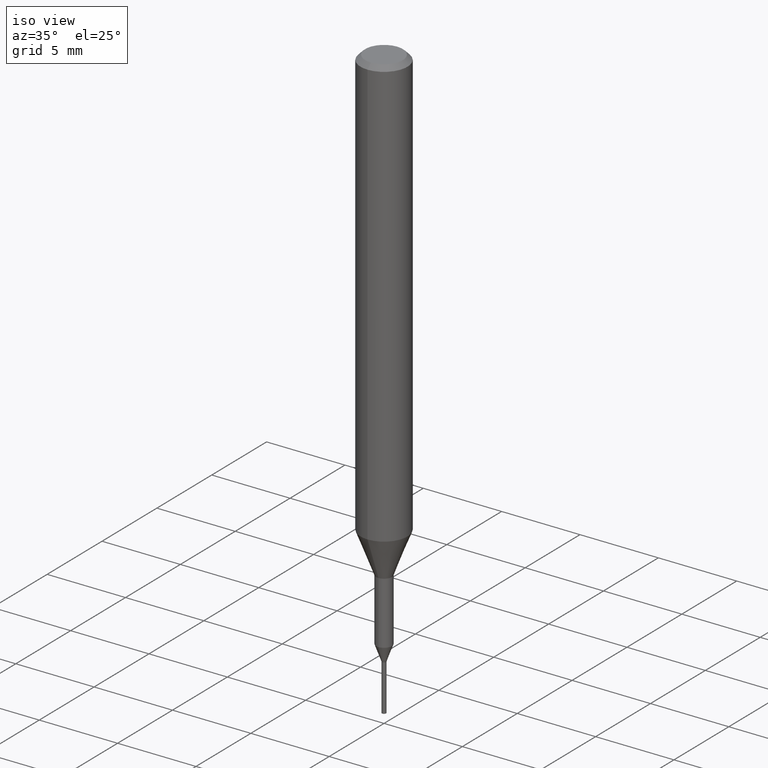
[diagram: clean part render]
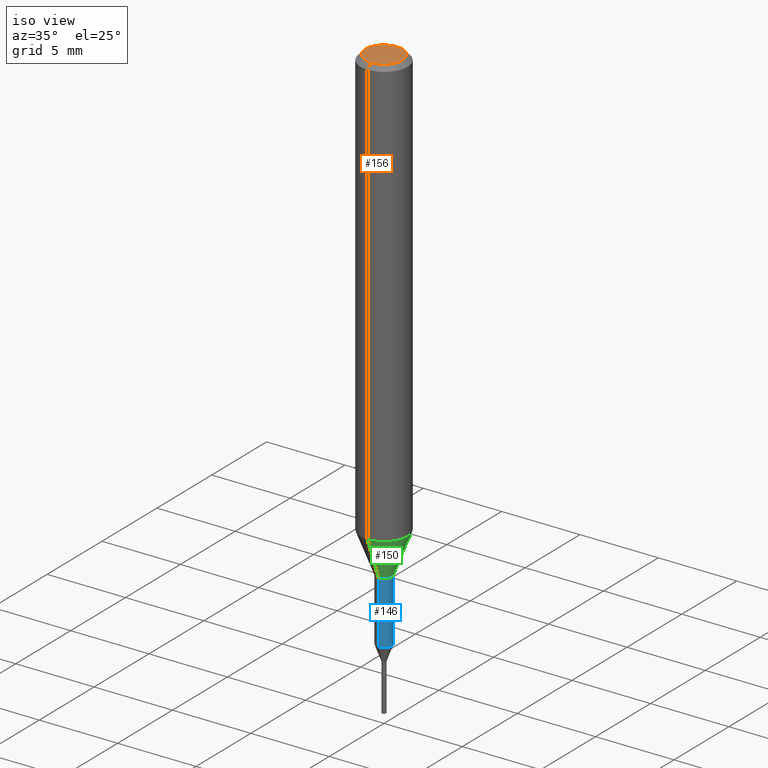
[diagram: same view with three faces highlighted in distinct colors, each labeled with its STEP entity id]
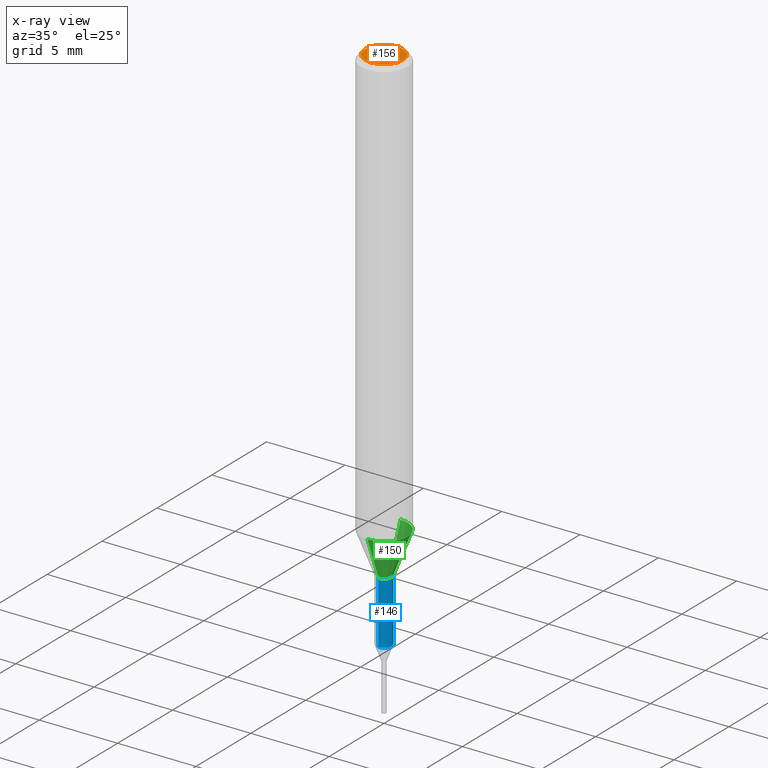
[diagram: x-ray of the same camera — body ghosted, the three highlighted faces saturated]
A machine part, iso view with three faces highlighted in distinct colors.
The next image is the same camera in x-ray (body ghosted, the three faces saturated) — at least one of them is partly hidden behind the body in this view.
Their STEP definitions:

[orange] entity #156 — the highlighted planar face has unit normal (-0, 0, 1).
#156=ADVANCED_FACE('',(#339),#340,.T.);
#174=VERTEX_POINT('',#360);
#192=EDGE_CURVE('',#262,#174,#382,.T.);
#208=EDGE_CURVE('',#174,#262,#398,.T.);
#262=VERTEX_POINT('',#460);
#339=FACE_OUTER_BOUND('',#539,.T.);
#340=PLANE('',#540);
#360=CARTESIAN_POINT('',(0.0,1.2,0.0));
#382=CIRCLE('',#595,1.2);
#398=CIRCLE('',#622,1.2);
#460=CARTESIAN_POINT('',(1.46952762458685E-016,-1.2,0.0));
#539=EDGE_LOOP('',(#774,#775));
#540=AXIS2_PLACEMENT_3D('',#776,#777,#778);
#595=AXIS2_PLACEMENT_3D('',#832,#833,#834);
#622=AXIS2_PLACEMENT_3D('',#850,#851,#852);
#774=ORIENTED_EDGE('',*,*,#208,.F.);
#775=ORIENTED_EDGE('',*,*,#192,.F.);
#776=CARTESIAN_POINT('',(0.0,0.6,0.0));
#777=DIRECTION('',(-0.0,0.0,1.0));
#778=DIRECTION('',(0.0,-1.0,0.0));
#832=CARTESIAN_POINT('',(0.0,0.0,0.0));
#833=DIRECTION('',(0.0,0.0,-1.0));
#834=DIRECTION('',(0.0,1.0,0.0));
#850=CARTESIAN_POINT('',(0.0,0.0,0.0));
#851=DIRECTION('',(0.0,0.0,-1.0));
#852=DIRECTION('',(0.0,1.0,0.0));

[blue] entity #146 — the highlighted cylindrical surface (edge-blend (fillet) strip) has radius 0.5 mm, axis along (-0, -0, 1).
#116=VERTEX_POINT('',#293);
#124=EDGE_CURVE('',#244,#116,#302,.T.);
#126=EDGE_CURVE('',#228,#116,#304,.T.);
#146=ADVANCED_FACE('',(#326),#327,.T.);
#184=VERTEX_POINT('',#373);
#194=EDGE_CURVE('',#244,#184,#384,.T.);
#204=EDGE_CURVE('',#184,#228,#394,.T.);
#228=VERTEX_POINT('',#421);
#244=VERTEX_POINT('',#440);
#293=CARTESIAN_POINT('',(6.12241946593498E-017,-0.49995,-30.0));
#302=CIRCLE('',#494,0.49995);
#304=LINE('',#497,#498);
#326=FACE_OUTER_BOUND('',#526,.T.);
#327=CYLINDRICAL_SURFACE('',#527,0.49995);
#373=CARTESIAN_POINT('',(0.0,0.49995,-33.983));
#384=LINE('',#598,#599);
#394=CIRCLE('',#616,0.49995);
#421=CARTESIAN_POINT('',(6.12241946593497E-017,-0.49995,-33.983));
#440=CARTESIAN_POINT('',(0.0,0.49995,-30.0));
#494=AXIS2_PLACEMENT_3D('',#718,#719,#720);
#497=CARTESIAN_POINT('',(6.12241946593497E-017,-0.49995,-31.9915));
#498=VECTOR('',#721,1.0);
#526=EDGE_LOOP('',(#752,#753,#754,#755));
#527=AXIS2_PLACEMENT_3D('',#756,#757,#758);
#598=CARTESIAN_POINT('',(-6.12241946593497E-017,0.49995,-31.9915));
#599=VECTOR('',#835,1.0);
#616=AXIS2_PLACEMENT_3D('',#844,#845,#846);
#718=CARTESIAN_POINT('',(0.0,0.0,-30.0));
#719=DIRECTION('',(0.0,0.0,-1.0));
#720=DIRECTION('',(0.0,1.0,0.0));
#721=DIRECTION('',(-0.0,-0.0,1.0));
#752=ORIENTED_EDGE('',*,*,#194,.F.);
#753=ORIENTED_EDGE('',*,*,#124,.T.);
#754=ORIENTED_EDGE('',*,*,#126,.F.);
#755=ORIENTED_EDGE('',*,*,#204,.F.);
#756=CARTESIAN_POINT('',(0.0,0.0,-31.9915));
#757=DIRECTION('',(-0.0,-0.0,1.0));
#758=DIRECTION('',(0.0,1.0,0.0));
#835=DIRECTION('',(0.0,0.0,-1.0));
#844=CARTESIAN_POINT('',(0.0,0.0,-33.983));
#845=DIRECTION('',(0.0,0.0,-1.0));
#846=DIRECTION('',(0.0,1.0,0.0));

[green] entity #150 — the highlighted conical surface has half-angle 21.001 deg.
#128=VERTEX_POINT('',#306);
#142=EDGE_CURVE('',#154,#128,#321,.T.);
#150=ADVANCED_FACE('',(#331),#332,.T.);
#154=VERTEX_POINT('',#337);
#158=VERTEX_POINT('',#342);
#182=EDGE_CURVE('',#154,#238,#371,.T.);
#196=EDGE_CURVE('',#158,#128,#386,.T.);
#198=EDGE_CURVE('',#238,#158,#388,.T.);
#238=VERTEX_POINT('',#433);
#306=CARTESIAN_POINT('',(1.83690953073357E-016,-1.5,-27.395));
#321=CIRCLE('',#521,1.5);
#331=FACE_OUTER_BOUND('',#531,.T.);
#332=CONICAL_SURFACE('',#532,1.0,0.366530581623394);
#337=CARTESIAN_POINT('',(0.0,1.5,-27.395));
#342=CARTESIAN_POINT('',(6.12303176911189E-017,-0.5,-30.0));
#371=LINE('',#580,#581);
#386=LINE('',#602,#603);
#388=CIRCLE('',#606,0.5);
#433=CARTESIAN_POINT('',(0.0,0.5,-30.0));
#521=AXIS2_PLACEMENT_3D('',#740,#741,#742);
#531=EDGE_LOOP('',(#760,#761,#762,#763));
#532=AXIS2_PLACEMENT_3D('',#764,#765,#766);
#580=CARTESIAN_POINT('',(-1.22460635382238E-016,1.0,-28.6975));
#581=VECTOR('',#817,1.0);
#602=CARTESIAN_POINT('',(1.22460635382238E-016,-1.0,-28.6975));
#603=VECTOR('',#836,1.0);
#606=AXIS2_PLACEMENT_3D('',#837,#838,#839);
#740=CARTESIAN_POINT('',(0.0,0.0,-27.395));
#741=DIRECTION('',(0.0,0.0,-1.0));
#742=DIRECTION('',(0.0,1.0,0.0));
#760=ORIENTED_EDGE('',*,*,#182,.F.);
#761=ORIENTED_EDGE('',*,*,#142,.T.);
#762=ORIENTED_EDGE('',*,*,#196,.F.);
#763=ORIENTED_EDGE('',*,*,#198,.F.);
#764=CARTESIAN_POINT('',(0.0,0.0,-28.6975));
#765=DIRECTION('',(-0.0,-0.0,1.0));
#766=DIRECTION('',(0.0,1.0,0.0));
#817=DIRECTION('',(4.38872745501645E-017,-0.35837862847256,-0.933576327171018));
#836=DIRECTION('',(4.38872745501645E-017,-0.35837862847256,0.933576327171018));
#837=CARTESIAN_POINT('',(0.0,0.0,-30.0));
#838=DIRECTION('',(0.0,0.0,-1.0));
#839=DIRECTION('',(0.0,1.0,0.0));